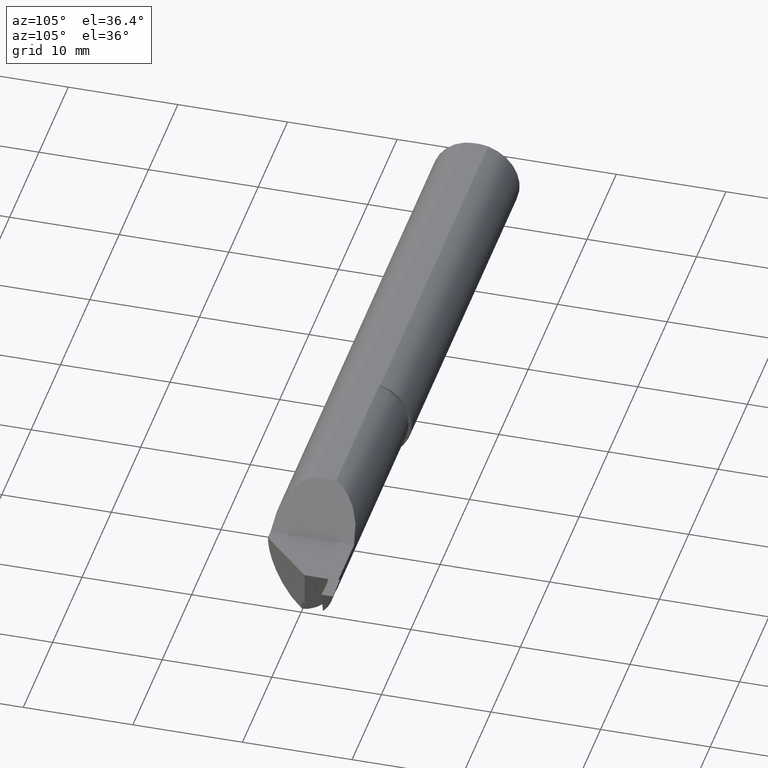
[diagram: clean part render]
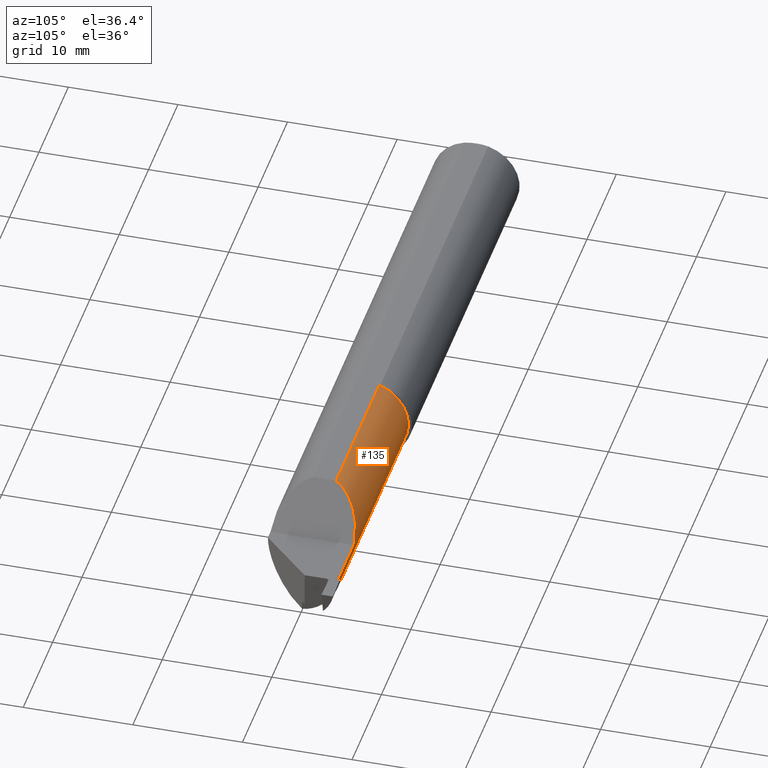
[diagram: same view with one face highlighted and labeled with its STEP entity id]
A machine part, auxiliary view. The second image highlights one B-rep face of the part: STEP entity #135.
In plain terms, the highlighted cylindrical surface (partial cylindrical patch) has radius 4.064 mm, axis along (-1, 0, -0).
Its self-contained STEP definition (entity closure, byte-faithful):
#8 = CARTESIAN_POINT ( 'NONE',  ( 2.120766287695780239, 0.1440559360311357284, 0.06933371230421984943 ) ) ;
#14 = EDGE_CURVE ( 'NONE', #31, #450, #366, .T. ) ;
#28 = CARTESIAN_POINT ( 'NONE',  ( 2.393528424321476944, 0.1413178839606255843, -0.02970743870867165182 ) ) ;
#31 = VERTEX_POINT ( 'NONE', #818 ) ;
#33 = CARTESIAN_POINT ( 'NONE',  ( 2.391587017932428338, 0.1399723861135269698, -0.03617397850232798029 ) ) ;
#34 = VERTEX_POINT ( 'NONE', #630 ) ;
#49 = VECTOR ( 'NONE', #482, 39.37007874015748143 ) ;
#50 = DIRECTION ( 'NONE',  ( 0.000000000000000000, 0.000000000000000000, -1.000000000000000000 ) ) ;
#72 = EDGE_CURVE ( 'NONE', #34, #305, #717, .T. ) ;
#76 = CARTESIAN_POINT ( 'NONE',  ( 1.460000000000000187, -0.01590076164021977240, 0.000000000000000000 ) ) ;
#77 = VERTEX_POINT ( 'NONE', #236 ) ;
#82 =( BOUNDED_CURVE ( )  B_SPLINE_CURVE ( 3, ( #401, #8, #714, #396 ),
 .UNSPECIFIED., .F., .F. ) 
 B_SPLINE_CURVE_WITH_KNOTS ( ( 4, 4 ),
 ( 4.713013980425380112, 5.929564525929065688 ),
 .UNSPECIFIED. ) 
 CURVE ( )  GEOMETRIC_REPRESENTATION_ITEM ( )  RATIONAL_B_SPLINE_CURVE ( ( 1.000000000000000000, 0.8804232255846621280, 0.8804232255846621280, 1.000000000000000000 ) ) 
 REPRESENTATION_ITEM ( '' )  );
#89 = LINE ( 'NONE', #151, #49 ) ;
#97 = CARTESIAN_POINT ( 'NONE',  ( 2.395237541366322276, 0.1415749431196159647, -0.02830905173955956117 ) ) ;
#105 = DIRECTION ( 'NONE',  ( -1.000000000000000000, 4.086873660734437432E-17, -0.000000000000000000 ) ) ;
#114 = CIRCLE ( 'NONE', #688, 0.1599999999999999756 ) ;
#117 = CIRCLE ( 'NONE', #614, 0.1600000000000001421 ) ;
#130 = EDGE_CURVE ( 'NONE', #298, #738, #591, .T. ) ;
#134 = CARTESIAN_POINT ( 'NONE',  ( 2.390354621555806691, 0.1348237892173857755, -0.05368528447138092713 ) ) ;
#135 = ADVANCED_FACE ( 'NONE', ( #766 ), #338, .T. ) ;
#151 = CARTESIAN_POINT ( 'NONE',  ( 1.460000000000000187, 0.1440992383597803073, 0.000000000000000000 ) ) ;
#156 = CARTESIAN_POINT ( 'NONE',  ( 1.460000000000000187, 0.03950672882812750197, 0.1500999999999999834 ) ) ;
#157 = ORIENTED_EDGE ( 'NONE', *, *, #72, .F. ) ;
#158 = EDGE_LOOP ( 'NONE', ( #376, #690, #157, #406, #764, #249, #732, #169, #315, #535 ) ) ;
#159 = CARTESIAN_POINT ( 'NONE',  ( 2.391261467994957535, 0.1394455784818683652, -0.03837570486038762579 ) ) ;
#169 = ORIENTED_EDGE ( 'NONE', *, *, #524, .T. ) ;
#187 = VERTEX_POINT ( 'NONE', #134 ) ;
#191 = CARTESIAN_POINT ( 'NONE',  ( 2.392170106203865387, 0.03081474338877097929, -0.1530283032314129488 ) ) ;
#192 = CARTESIAN_POINT ( 'NONE',  ( 1.460000000000000187, -0.01590076164021977240, 0.000000000000000000 ) ) ;
#196 = DIRECTION ( 'NONE',  ( 1.000000000000000000, -4.086873660734437432E-17, 0.000000000000000000 ) ) ;
#210 = EDGE_CURVE ( 'NONE', #305, #738, #82, .T. ) ;
#220 = VERTEX_POINT ( 'NONE', #389 ) ;
#221 = CARTESIAN_POINT ( 'NONE',  ( 2.394182829550270064, 0.1414948030566662573, -0.02875535868220120000 ) ) ;
#226 = CARTESIAN_POINT ( 'NONE',  ( 2.390354621555806691, 0.1348237892173857755, -0.05368528447138092713 ) ) ;
#236 = CARTESIAN_POINT ( 'NONE',  ( 2.397000000000000242, 0.1415473010265777265, -0.02846238855880210000 ) ) ;
#242 = EDGE_CURVE ( 'NONE', #298, #450, #114, .T. ) ;
#246 = CARTESIAN_POINT ( 'NONE',  ( 2.189999999999999947, -0.01590076164021980362, 0.000000000000000000 ) ) ;
#249 = ORIENTED_EDGE ( 'NONE', *, *, #274, .F. ) ;
#259 =( BOUNDED_CURVE ( )  B_SPLINE_CURVE ( 3, ( #307, #377, #718, #191 ),
 .UNSPECIFIED., .F., .T. ) 
 B_SPLINE_CURVE_WITH_KNOTS ( ( 4, 4 ),
 ( 0.3421710031171500410, 1.274508393031518194 ),
 .UNSPECIFIED. ) 
 CURVE ( )  GEOMETRIC_REPRESENTATION_ITEM ( )  RATIONAL_B_SPLINE_CURVE ( ( 1.000000000000000000, 0.9288645905647989753, 0.9288645905647989753, 1.000000000000000000 ) ) 
 REPRESENTATION_ITEM ( '' )  );
#274 = EDGE_CURVE ( 'NONE', #742, #77, #777, .T. ) ;
#282 = DIRECTION ( 'NONE',  ( 0.000000000000000000, -1.000000000000000000, 0.000000000000000000 ) ) ;
#285 = EDGE_CURVE ( 'NONE', #742, #187, #449, .T. ) ;
#288 = CARTESIAN_POINT ( 'NONE',  ( 2.390327835662139133, 0.1363583520378609804, -0.04937691032087788284 ) ) ;
#298 = VERTEX_POINT ( 'NONE', #156 ) ;
#305 = VERTEX_POINT ( 'NONE', #544 ) ;
#307 = CARTESIAN_POINT ( 'NONE',  ( 2.390354621555806691, 0.1348237892173857755, -0.05368528447138092713 ) ) ;
#315 = ORIENTED_EDGE ( 'NONE', *, *, #14, .T. ) ;
#327 = EDGE_CURVE ( 'NONE', #34, #220, #89, .T. ) ;
#333 = DIRECTION ( 'NONE',  ( -1.000000000000000000, 4.086873660734437432E-17, -0.000000000000000000 ) ) ;
#337 = CARTESIAN_POINT ( 'NONE',  ( 2.395237541366322276, 0.1415749431196159647, -0.02830905173955956117 ) ) ;
#338 = CYLINDRICAL_SURFACE ( 'NONE', #436, 0.1600000000000000588 ) ;
#345 = CARTESIAN_POINT ( 'NONE',  ( 2.397000000000000242, 0.1415473010265777265, -0.02846238855880210000 ) ) ;
#356 = AXIS2_PLACEMENT_3D ( 'NONE', #246, #559, #50 ) ;
#366 = LINE ( 'NONE', #500, #466 ) ;
#376 = ORIENTED_EDGE ( 'NONE', *, *, #130, .T. ) ;
#377 = CARTESIAN_POINT ( 'NONE',  ( 2.390656916558962841, 0.1175053200853597435, -0.1023078913397017925 ) ) ;
#384 = DIRECTION ( 'NONE',  ( 0.000000000000000000, -1.000000000000000000, 0.000000000000000000 ) ) ;
#389 = CARTESIAN_POINT ( 'NONE',  ( 2.397000000000000242, 0.1440992383597803073, 0.000000000000000000 ) ) ;
#396 = CARTESIAN_POINT ( 'NONE',  ( 2.039999999999999591, 0.03950672882812752973, 0.1500999999999999834 ) ) ;
#401 = CARTESIAN_POINT ( 'NONE',  ( 2.189999999999999947, 0.1440992071097771665, 9.999999999993541345E-05 ) ) ;
#406 = ORIENTED_EDGE ( 'NONE', *, *, #327, .T. ) ;
#436 = AXIS2_PLACEMENT_3D ( 'NONE', #76, #333, #384 ) ;
#449 = B_SPLINE_CURVE_WITH_KNOTS ( 'NONE', 3,
 ( #97, #598, #221, #28, #473, #784, #470, #33, #159, #728, #288, #226 ),
 .UNSPECIFIED., .F., .F.,
 ( 4, 2, 2, 2, 2, 4 ),
 ( 6.844839980458455929E-05, 0.0001125425597858121943, 0.0001566367197670398429, 0.0002448250397294954653, 0.0004212016796544110469, 0.0007739549595042422101 ),
 .UNSPECIFIED. ) ;
#450 = VERTEX_POINT ( 'NONE', #760 ) ;
#466 = VECTOR ( 'NONE', #105, 39.37007874015748143 ) ;
#470 = CARTESIAN_POINT ( 'NONE',  ( 2.392354812833866085, 0.1406845617693851802, -0.03289810360106641685 ) ) ;
#473 = CARTESIAN_POINT ( 'NONE',  ( 2.393290601976943766, 0.1412198533181780180, -0.03022249525291886493 ) ) ;
#482 = DIRECTION ( 'NONE',  ( 1.000000000000000000, -4.086873660734437432E-17, 0.000000000000000000 ) ) ;
#488 = VECTOR ( 'NONE', #196, 39.37007874015748143 ) ;
#500 = CARTESIAN_POINT ( 'NONE',  ( 1.928500000000000103, 0.03081474338883930311, -0.1530283032313956570 ) ) ;
#524 = EDGE_CURVE ( 'NONE', #187, #31, #259, .T. ) ;
#535 = ORIENTED_EDGE ( 'NONE', *, *, #242, .F. ) ;
#544 = CARTESIAN_POINT ( 'NONE',  ( 2.189999999999999947, 0.1440992071097771665, 9.999999999993541345E-05 ) ) ;
#549 = CARTESIAN_POINT ( 'NONE',  ( 2.395237541366322276, 0.1415749431196159647, -0.02830905173955956117 ) ) ;
#559 = DIRECTION ( 'NONE',  ( 1.000000000000000000, 0.000000000000000000, -0.000000000000000000 ) ) ;
#587 = EDGE_CURVE ( 'NONE', #220, #77, #117, .T. ) ;
#590 = CARTESIAN_POINT ( 'NONE',  ( 2.397000000000000242, -0.01590076164021981056, 0.000000000000000000 ) ) ;
#591 = LINE ( 'NONE', #776, #488 ) ;
#598 = CARTESIAN_POINT ( 'NONE',  ( 2.394658603625097637, 0.1415840033379161533, -0.02825865216153053069 ) ) ;
#614 = AXIS2_PLACEMENT_3D ( 'NONE', #590, #713, #770 ) ;
#630 = CARTESIAN_POINT ( 'NONE',  ( 2.189999999999999947, 0.1440992383597802795, 0.000000000000000000 ) ) ;
#688 = AXIS2_PLACEMENT_3D ( 'NONE', #192, #787, #282 ) ;
#690 = ORIENTED_EDGE ( 'NONE', *, *, #210, .F. ) ;
#713 = DIRECTION ( 'NONE',  ( -1.000000000000000000, 4.086873660734437432E-17, -0.000000000000000000 ) ) ;
#714 = CARTESIAN_POINT ( 'NONE',  ( 2.063975418773851711, 0.1044566178690503194, 0.1261245812261482802 ) ) ;
#717 = CIRCLE ( 'NONE', #356, 0.1600000000000000588 ) ;
#718 = CARTESIAN_POINT ( 'NONE',  ( 2.391308423307632491, 0.08018052345188034224, -0.1379582325444872470 ) ) ;
#723 = CARTESIAN_POINT ( 'NONE',  ( 2.396412511381983190, 0.1415565350988367277, -0.02841130757586299987 ) ) ;
#725 = CARTESIAN_POINT ( 'NONE',  ( 2.039999999999999591, 0.03950672882812752973, 0.1500999999999999834 ) ) ;
#728 = CARTESIAN_POINT ( 'NONE',  ( 2.390507789882557521, 0.1377139535113450775, -0.04498043730712079913 ) ) ;
#731 = CARTESIAN_POINT ( 'NONE',  ( 2.395825025169316280, 0.1415657491577745897, -0.02836019529724661051 ) ) ;
#732 = ORIENTED_EDGE ( 'NONE', *, *, #285, .T. ) ;
#738 = VERTEX_POINT ( 'NONE', #725 ) ;
#742 = VERTEX_POINT ( 'NONE', #337 ) ;
#760 = CARTESIAN_POINT ( 'NONE',  ( 1.460000000000000187, 0.03081474338883832820, -0.1530283032313958513 ) ) ;
#764 = ORIENTED_EDGE ( 'NONE', *, *, #587, .T. ) ;
#766 = FACE_OUTER_BOUND ( 'NONE', #158, .T. ) ;
#770 = DIRECTION ( 'NONE',  ( 0.000000000000000000, -1.000000000000000000, 0.000000000000000000 ) ) ;
#776 = CARTESIAN_POINT ( 'NONE',  ( 1.460000000000000187, 0.03950672882812778647, 0.1500999999999999834 ) ) ;
#777 = B_SPLINE_CURVE_WITH_KNOTS ( 'NONE', 3,
 ( #549, #731, #723, #345 ),
 .UNSPECIFIED., .F., .F.,
 ( 4, 4 ),
 ( 1.394538581036893526E-17, 4.494103979586338421E-05 ),
 .UNSPECIFIED. ) ;
#784 = CARTESIAN_POINT ( 'NONE',  ( 2.392655910541945818, 0.1409110671239155455, -0.03179933673079819723 ) ) ;
#787 = DIRECTION ( 'NONE',  ( -1.000000000000000000, 4.086873660734437432E-17, -0.000000000000000000 ) ) ;
#818 = CARTESIAN_POINT ( 'NONE',  ( 2.392170106203865387, 0.03081474338877097929, -0.1530283032314129488 ) ) ;